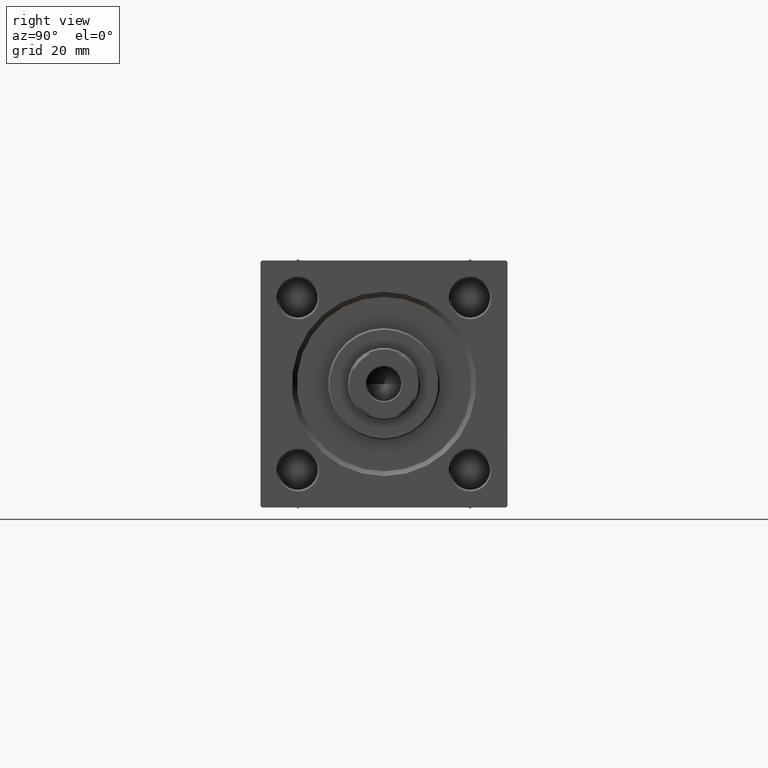
[diagram: clean part render]
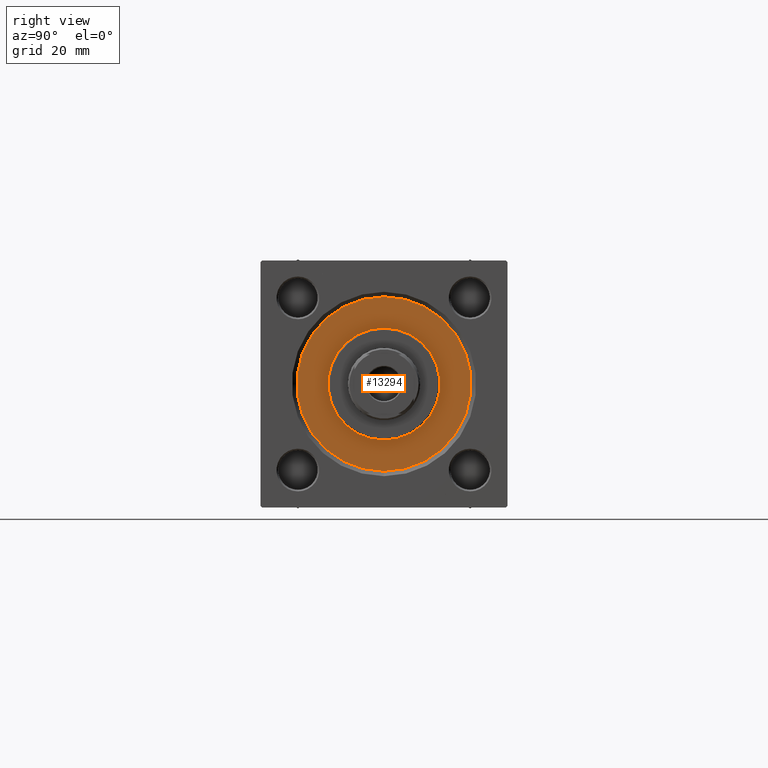
[diagram: same view with one face highlighted and labeled with its STEP entity id]
A machine part, right view. The second image highlights one B-rep face of the part: STEP entity #13294.
In plain terms, the highlighted planar face has unit normal (1, 0, 0).
Its self-contained STEP definition (entity closure, byte-faithful):
#710 = CARTESIAN_POINT ( 'NONE',  ( 26.50000000000000355, 3.245314017740486554E-15, 28.69999999999999929 ) ) ;
#1523 = ORIENTED_EDGE ( 'NONE', *, *, #44132, .F. ) ;
#2545 = ORIENTED_EDGE ( 'NONE', *, *, #29914, .T. ) ;
#4554 = CARTESIAN_POINT ( 'NONE',  ( 0.000000000000000000, 0.000000000000000000, 28.69999999999999929 ) ) ;
#4568 = CARTESIAN_POINT ( 'NONE',  ( 0.000000000000000000, 0.000000000000000000, 28.69999999999999929 ) ) ;
#6612 = CIRCLE ( 'NONE', #7406, 17.00000000000000000 ) ;
#7406 = AXIS2_PLACEMENT_3D ( 'NONE', #4554, #46700, #7861 ) ;
#7855 = CARTESIAN_POINT ( 'NONE',  ( -17.00000000000000000, 0.000000000000000000, 28.69999999999999929 ) ) ;
#7861 = DIRECTION ( 'NONE',  ( 1.000000000000000000, 0.000000000000000000, 0.000000000000000000 ) ) ;
#9105 = DIRECTION ( 'NONE',  ( 1.000000000000000000, 0.000000000000000000, 0.000000000000000000 ) ) ;
#12897 = EDGE_LOOP ( 'NONE', ( #2545, #48222 ) ) ;
#12969 = DIRECTION ( 'NONE',  ( 1.000000000000000000, 0.000000000000000000, 0.000000000000000000 ) ) ;
#13294 = ADVANCED_FACE ( 'NONE', ( #36204, #35712 ), #16418, .T. ) ;
#16418 = PLANE ( 'NONE',  #24958 ) ;
#19268 = ORIENTED_EDGE ( 'NONE', *, *, #28943, .F. ) ;
#19322 = VERTEX_POINT ( 'NONE', #41579 ) ;
#19537 = CIRCLE ( 'NONE', #48750, 26.50000000000000355 ) ;
#20047 = DIRECTION ( 'NONE',  ( 1.000000000000000000, 0.000000000000000000, 0.000000000000000000 ) ) ;
#21111 = AXIS2_PLACEMENT_3D ( 'NONE', #4568, #47468, #20047 ) ;
#23191 = VERTEX_POINT ( 'NONE', #710 ) ;
#24781 = DIRECTION ( 'NONE',  ( 1.000000000000000000, 0.000000000000000000, -0.000000000000000000 ) ) ;
#24958 = AXIS2_PLACEMENT_3D ( 'NONE', #32150, #28841, #24781 ) ;
#25503 = EDGE_LOOP ( 'NONE', ( #1523, #19268 ) ) ;
#28841 = DIRECTION ( 'NONE',  ( 0.000000000000000000, 0.000000000000000000, 1.000000000000000000 ) ) ;
#28896 = DIRECTION ( 'NONE',  ( 0.000000000000000000, 0.000000000000000000, 1.000000000000000000 ) ) ;
#28943 = EDGE_CURVE ( 'NONE', #19322, #42861, #47121, .T. ) ;
#29914 = EDGE_CURVE ( 'NONE', #49364, #23191, #19537, .T. ) ;
#32150 = CARTESIAN_POINT ( 'NONE',  ( 0.000000000000000000, 0.000000000000000000, 28.69999999999999929 ) ) ;
#32265 = CARTESIAN_POINT ( 'NONE',  ( 0.000000000000000000, 0.000000000000000000, 28.69999999999999929 ) ) ;
#35712 = FACE_OUTER_BOUND ( 'NONE', #12897, .T. ) ;
#36204 = FACE_BOUND ( 'NONE', #25503, .T. ) ;
#41377 = EDGE_CURVE ( 'NONE', #23191, #49364, #43009, .T. ) ;
#41579 = CARTESIAN_POINT ( 'NONE',  ( 17.00000000000000000, 2.081899558550500280E-15, 28.69999999999999929 ) ) ;
#42861 = VERTEX_POINT ( 'NONE', #7855 ) ;
#43009 = CIRCLE ( 'NONE', #21111, 26.50000000000000355 ) ;
#44132 = EDGE_CURVE ( 'NONE', #42861, #19322, #6612, .T. ) ;
#46667 = CARTESIAN_POINT ( 'NONE',  ( -26.50000000000000355, 0.000000000000000000, 28.69999999999999929 ) ) ;
#46700 = DIRECTION ( 'NONE',  ( 0.000000000000000000, 0.000000000000000000, 1.000000000000000000 ) ) ;
#47121 = CIRCLE ( 'NONE', #47903, 17.00000000000000000 ) ;
#47440 = CARTESIAN_POINT ( 'NONE',  ( 0.000000000000000000, 0.000000000000000000, 28.69999999999999929 ) ) ;
#47468 = DIRECTION ( 'NONE',  ( 0.000000000000000000, 0.000000000000000000, 1.000000000000000000 ) ) ;
#47738 = DIRECTION ( 'NONE',  ( 0.000000000000000000, 0.000000000000000000, 1.000000000000000000 ) ) ;
#47903 = AXIS2_PLACEMENT_3D ( 'NONE', #32265, #47738, #12969 ) ;
#48222 = ORIENTED_EDGE ( 'NONE', *, *, #41377, .T. ) ;
#48750 = AXIS2_PLACEMENT_3D ( 'NONE', #47440, #28896, #9105 ) ;
#49364 = VERTEX_POINT ( 'NONE', #46667 ) ;